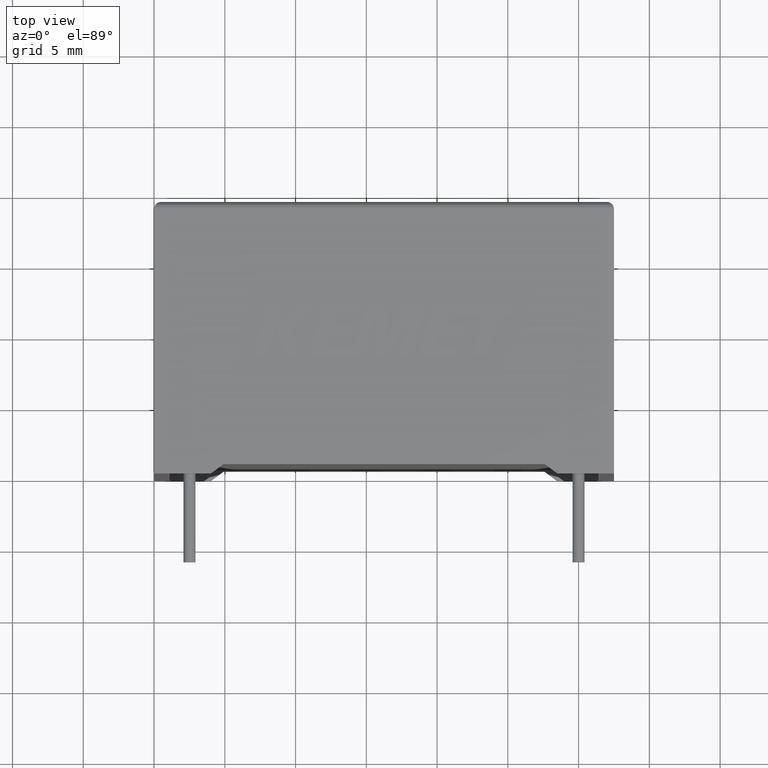
[diagram: clean part render]
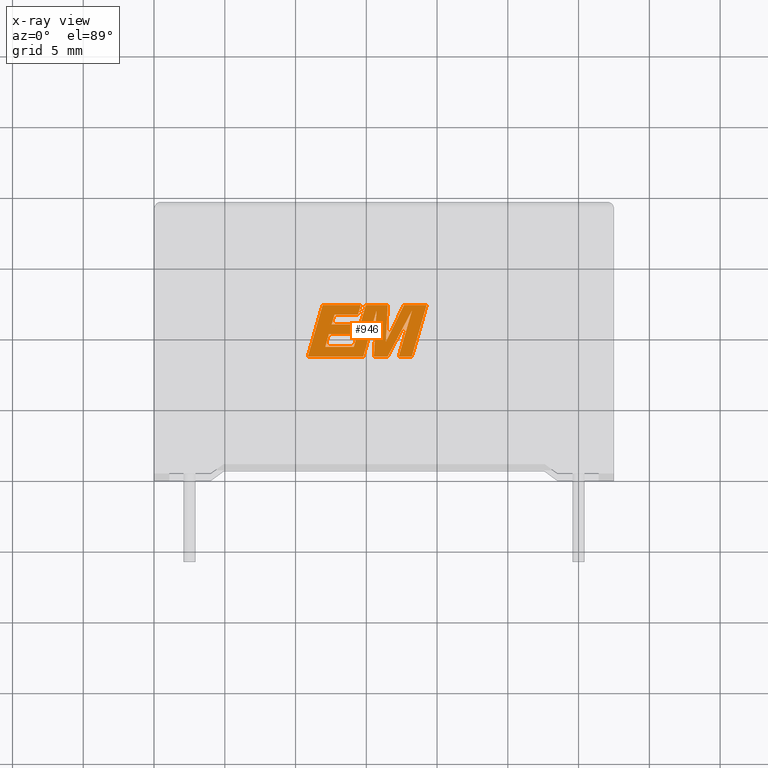
[diagram: x-ray — body ghosted, one internal face saturated and labeled with its STEP entity id]
A machine part, top view, then the same camera in x-ray: the body is ghosted and one INTERNAL B-rep face — a face not visible from any outside direction — is saturated and labeled: STEP entity #946.
In plain terms, the highlighted planar face has unit normal (0, 0, -1).
Its self-contained STEP definition (entity closure, byte-faithful):
#16 = VECTOR ( 'NONE', #124, 1000.000000000000100 ) ;
#24 = ORIENTED_EDGE ( 'NONE', *, *, #1815, .F. ) ;
#38 = LINE ( 'NONE', #177, #1385 ) ;
#44 = CARTESIAN_POINT ( 'NONE',  ( 12.74853395635959400, 11.20912647714856700, 31.30000000000000100 ) ) ;
#60 = DIRECTION ( 'NONE',  ( -1.000000000000000000, 0.0000000000000000000, 0.0000000000000000000 ) ) ;
#81 = CARTESIAN_POINT ( 'NONE',  ( 19.26368588534720400, 11.90203392768284000, 31.30000000000000100 ) ) ;
#100 = VERTEX_POINT ( 'NONE', #1088 ) ;
#103 = VERTEX_POINT ( 'NONE', #2242 ) ;
#124 = DIRECTION ( 'NONE',  ( -0.2765379750249963300, -0.9610029908221277000, 0.0000000000000000000 ) ) ;
#143 = ORIENTED_EDGE ( 'NONE', *, *, #830, .F. ) ;
#150 = CARTESIAN_POINT ( 'NONE',  ( 15.53761898871701800, 8.261759999999885200, 31.30000000000000100 ) ) ;
#169 = DIRECTION ( 'NONE',  ( 0.0000000000000000000, 0.0000000000000000000, -1.000000000000000000 ) ) ;
#177 = CARTESIAN_POINT ( 'NONE',  ( 13.92174256822604400, 9.859074327039259300, 31.30000000000000100 ) ) ;
#192 = LINE ( 'NONE', #2840, #1751 ) ;
#196 = ORIENTED_EDGE ( 'NONE', *, *, #920, .F. ) ;
#217 = CARTESIAN_POINT ( 'NONE',  ( 12.74853395635959400, 11.20912647714856700, 31.30000000000000100 ) ) ;
#220 = DIRECTION ( 'NONE',  ( -0.2760118818968580500, -0.9611542233438683500, 0.0000000000000000000 ) ) ;
#236 = CARTESIAN_POINT ( 'NONE',  ( 16.51723953100936600, 11.90203392768284000, 31.30000000000000100 ) ) ;
#259 = LINE ( 'NONE', #679, #341 ) ;
#317 = CARTESIAN_POINT ( 'NONE',  ( 16.50808346277604600, 8.261759999999885200, 31.30000000000000100 ) ) ;
#318 = VECTOR ( 'NONE', #2994, 1000.000000000000000 ) ;
#341 = VECTOR ( 'NONE', #220, 1000.000000000000100 ) ;
#392 = DIRECTION ( 'NONE',  ( -1.000000000000000000, 0.0000000000000000000, 0.0000000000000000000 ) ) ;
#402 = CARTESIAN_POINT ( 'NONE',  ( 16.50808346277604600, 8.261759999999885200, 31.30000000000000100 ) ) ;
#410 = LINE ( 'NONE', #2142, #885 ) ;
#416 = ORIENTED_EDGE ( 'NONE', *, *, #2874, .F. ) ;
#431 = EDGE_CURVE ( 'NONE', #2202, #2073, #505, .T. ) ;
#435 = CARTESIAN_POINT ( 'NONE',  ( 15.53761898871701800, 8.261759999999885200, 31.30000000000000100 ) ) ;
#453 = ORIENTED_EDGE ( 'NONE', *, *, #1978, .F. ) ;
#455 = ORIENTED_EDGE ( 'NONE', *, *, #1704, .F. ) ;
#461 = LINE ( 'NONE', #2967, #1353 ) ;
#505 = LINE ( 'NONE', #647, #318 ) ;
#518 = VERTEX_POINT ( 'NONE', #44 ) ;
#521 = DIRECTION ( 'NONE',  ( 0.2732148821746286900, 0.9619530280415482500, 0.0000000000000000000 ) ) ;
#533 = VECTOR ( 'NONE', #667, 1000.000000000000000 ) ;
#540 = FACE_OUTER_BOUND ( 'NONE', #557, .T. ) ;
#554 = ORIENTED_EDGE ( 'NONE', *, *, #431, .F. ) ;
#557 = EDGE_LOOP ( 'NONE', ( #196, #1159, #2027, #2402, #2363, #453, #1808, #24, #554, #2504, #2407, #416, #726, #625, #2316, #455, #2736, #2136, #3013, #1052, #585, #143, #2245 ) ) ;
#569 = VERTEX_POINT ( 'NONE', #81 ) ;
#585 = ORIENTED_EDGE ( 'NONE', *, *, #1324, .F. ) ;
#613 = CARTESIAN_POINT ( 'NONE',  ( 18.21708028970564500, 8.261759999999885200, 31.30000000000000100 ) ) ;
#615 = LINE ( 'NONE', #1071, #2385 ) ;
#625 = ORIENTED_EDGE ( 'NONE', *, *, #761, .F. ) ;
#629 = CARTESIAN_POINT ( 'NONE',  ( 14.60388023954813400, 11.90203392768284000, 31.30000000000000100 ) ) ;
#647 = CARTESIAN_POINT ( 'NONE',  ( 14.14077972987733700, 8.261759999999885200, 31.30000000000000100 ) ) ;
#653 = EDGE_CURVE ( 'NONE', #2848, #2202, #3009, .T. ) ;
#663 = CARTESIAN_POINT ( 'NONE',  ( 12.55151230143713000, 10.53203610217055800, 31.30000000000000100 ) ) ;
#666 = EDGE_CURVE ( 'NONE', #1105, #1602, #615, .T. ) ;
#667 = DIRECTION ( 'NONE',  ( 1.000000000000000000, 0.0000000000000000000, 0.0000000000000000000 ) ) ;
#669 = LINE ( 'NONE', #2844, #1848 ) ;
#679 = CARTESIAN_POINT ( 'NONE',  ( 18.22717488236188300, 11.51820696545625600, 31.30000000000000100 ) ) ;
#726 = ORIENTED_EDGE ( 'NONE', *, *, #1024, .F. ) ;
#761 = EDGE_CURVE ( 'NONE', #1602, #518, #3046, .T. ) ;
#830 = EDGE_CURVE ( 'NONE', #2794, #103, #1321, .T. ) ;
#836 = LINE ( 'NONE', #1600, #2960 ) ;
#839 = DIRECTION ( 'NONE',  ( 1.000000000000000000, 0.0000000000000000000, 0.0000000000000000000 ) ) ;
#856 = VECTOR ( 'NONE', #2261, 1000.000000000000100 ) ;
#862 = DIRECTION ( 'NONE',  ( -1.000000000000000000, 0.0000000000000000000, 0.0000000000000000000 ) ) ;
#880 = VERTEX_POINT ( 'NONE', #2306 ) ;
#885 = VECTOR ( 'NONE', #521, 1000.000000000000100 ) ;
#900 = DIRECTION ( 'NONE',  ( -0.05596501978069369500, -0.9984327301130239100, 0.0000000000000000000 ) ) ;
#912 = CARTESIAN_POINT ( 'NONE',  ( 17.66708649917551800, 11.90203392768284000, 31.30000000000000100 ) ) ;
#920 = EDGE_CURVE ( 'NONE', #569, #2574, #836, .T. ) ;
#928 = VECTOR ( 'NONE', #1216, 1000.000000000000200 ) ;
#929 = DIRECTION ( 'NONE',  ( 0.2746459304916892800, 0.9615454294334481200, 0.0000000000000000000 ) ) ;
#942 = DIRECTION ( 'NONE',  ( 0.05375259206908576700, 0.9985542843760946100, 0.0000000000000000000 ) ) ;
#946 = ADVANCED_FACE ( 'NONE', ( #540 ), #2272, .T. ) ;
#958 = LINE ( 'NONE', #629, #1520 ) ;
#994 = CARTESIAN_POINT ( 'NONE',  ( 14.11969398825102900, 8.954324322939751100, 31.30000000000000100 ) ) ;
#1024 = EDGE_CURVE ( 'NONE', #518, #2465, #2710, .T. ) ;
#1052 = ORIENTED_EDGE ( 'NONE', *, *, #2791, .F. ) ;
#1071 = CARTESIAN_POINT ( 'NONE',  ( 14.11396043673089000, 10.53203610217055800, 31.30000000000000100 ) ) ;
#1088 = CARTESIAN_POINT ( 'NONE',  ( 17.29203041396853300, 8.261759999999885200, 31.30000000000000100 ) ) ;
#1105 = VERTEX_POINT ( 'NONE', #2562 ) ;
#1159 = ORIENTED_EDGE ( 'NONE', *, *, #2442, .F. ) ;
#1175 = VECTOR ( 'NONE', #1619, 999.9999999999998900 ) ;
#1188 = LINE ( 'NONE', #402, #1745 ) ;
#1196 = VECTOR ( 'NONE', #1801, 1000.000000000000000 ) ;
#1216 = DIRECTION ( 'NONE',  ( 0.2740217765954066600, 0.9617234872620595800, 0.0000000000000000000 ) ) ;
#1274 = LINE ( 'NONE', #150, #1196 ) ;
#1280 = CARTESIAN_POINT ( 'NONE',  ( 12.10172735933368300, 8.954324322939751100, 31.30000000000000100 ) ) ;
#1299 = DIRECTION ( 'NONE',  ( -1.000000000000000000, 0.0000000000000000000, 0.0000000000000000000 ) ) ;
#1321 = LINE ( 'NONE', #2333, #1468 ) ;
#1324 = EDGE_CURVE ( 'NONE', #103, #2243, #1462, .T. ) ;
#1338 = CARTESIAN_POINT ( 'NONE',  ( 12.35951580557810200, 9.859074327039259300, 31.30000000000000100 ) ) ;
#1341 = VERTEX_POINT ( 'NONE', #1280 ) ;
#1353 = VECTOR ( 'NONE', #900, 1000.000000000000100 ) ;
#1385 = VECTOR ( 'NONE', #929, 1000.000000000000100 ) ;
#1426 = CARTESIAN_POINT ( 'NONE',  ( 18.22717488236188300, 11.51820696545625600, 31.30000000000000100 ) ) ;
#1428 = EDGE_CURVE ( 'NONE', #100, #2325, #2416, .T. ) ;
#1435 = DIRECTION ( 'NONE',  ( -0.2762517575166416100, -0.9610853065513833600, 0.0000000000000000000 ) ) ;
#1462 = LINE ( 'NONE', #236, #2632 ) ;
#1468 = VECTOR ( 'NONE', #942, 1000.000000000000100 ) ;
#1477 = CARTESIAN_POINT ( 'NONE',  ( 11.91456785581369500, 11.90203392768284000, 31.30000000000000100 ) ) ;
#1520 = VECTOR ( 'NONE', #392, 1000.000000000000000 ) ;
#1555 = EDGE_CURVE ( 'NONE', #2946, #1648, #461, .T. ) ;
#1599 = LINE ( 'NONE', #613, #856 ) ;
#1600 = CARTESIAN_POINT ( 'NONE',  ( 19.26368588534720400, 11.90203392768284000, 31.30000000000000100 ) ) ;
#1602 = VERTEX_POINT ( 'NONE', #2519 ) ;
#1619 = DIRECTION ( 'NONE',  ( 0.2793947940878295200, 0.9601763114327595000, 0.0000000000000000000 ) ) ;
#1628 = VERTEX_POINT ( 'NONE', #1338 ) ;
#1642 = LINE ( 'NONE', #1934, #928 ) ;
#1648 = VERTEX_POINT ( 'NONE', #435 ) ;
#1661 = EDGE_CURVE ( 'NONE', #2574, #2794, #2375, .T. ) ;
#1704 = EDGE_CURVE ( 'NONE', #2807, #1105, #38, .T. ) ;
#1745 = VECTOR ( 'NONE', #2257, 1000.000000000000100 ) ;
#1751 = VECTOR ( 'NONE', #2629, 1000.000000000000000 ) ;
#1774 = EDGE_CURVE ( 'NONE', #1628, #2807, #2948, .T. ) ;
#1801 = DIRECTION ( 'NONE',  ( 1.000000000000000000, 0.0000000000000000000, 0.0000000000000000000 ) ) ;
#1808 = ORIENTED_EDGE ( 'NONE', *, *, #1555, .F. ) ;
#1815 = EDGE_CURVE ( 'NONE', #2073, #2946, #2739, .T. ) ;
#1848 = VECTOR ( 'NONE', #1435, 1000.000000000000100 ) ;
#1858 = VECTOR ( 'NONE', #2834, 1000.000000000000000 ) ;
#1934 = CARTESIAN_POINT ( 'NONE',  ( 12.10172735933368300, 8.954324322939751100, 31.30000000000000100 ) ) ;
#1978 = EDGE_CURVE ( 'NONE', #1648, #2293, #1274, .T. ) ;
#2027 = ORIENTED_EDGE ( 'NONE', *, *, #1428, .F. ) ;
#2044 = VECTOR ( 'NONE', #2103, 1000.000000000000200 ) ;
#2073 = VERTEX_POINT ( 'NONE', #2307 ) ;
#2103 = DIRECTION ( 'NONE',  ( 0.2759782365590697200, 0.9611638845408966300, 0.0000000000000000000 ) ) ;
#2106 = EDGE_CURVE ( 'NONE', #2804, #100, #259, .T. ) ;
#2136 = ORIENTED_EDGE ( 'NONE', *, *, #2206, .F. ) ;
#2142 = CARTESIAN_POINT ( 'NONE',  ( 14.40707995727128900, 11.20912647714856700, 31.30000000000000100 ) ) ;
#2151 = CARTESIAN_POINT ( 'NONE',  ( 10.86704356076801900, 8.261759999999883400, 31.30000000000000100 ) ) ;
#2163 = VERTEX_POINT ( 'NONE', #994 ) ;
#2174 = CARTESIAN_POINT ( 'NONE',  ( 15.71927738200547600, 11.50260019392240100, 31.30000000000000100 ) ) ;
#2185 = EDGE_CURVE ( 'NONE', #2163, #1341, #192, .T. ) ;
#2202 = VERTEX_POINT ( 'NONE', #2151 ) ;
#2206 = EDGE_CURVE ( 'NONE', #1341, #1628, #1642, .T. ) ;
#2242 = CARTESIAN_POINT ( 'NONE',  ( 16.51723953100936600, 11.90203392768284000, 31.30000000000000100 ) ) ;
#2243 = VERTEX_POINT ( 'NONE', #2678 ) ;
#2245 = ORIENTED_EDGE ( 'NONE', *, *, #1661, .F. ) ;
#2257 = DIRECTION ( 'NONE',  ( 0.4668459304955081000, 0.8843386665637680300, 0.0000000000000000000 ) ) ;
#2261 = DIRECTION ( 'NONE',  ( 0.2763139702539113000, 0.9610674221107073900, 0.0000000000000000000 ) ) ;
#2270 = CARTESIAN_POINT ( 'NONE',  ( 14.40707995727128900, 11.20912647714856700, 31.30000000000000100 ) ) ;
#2272 = PLANE ( 'NONE',  #2452 ) ;
#2293 = VERTEX_POINT ( 'NONE', #317 ) ;
#2306 = CARTESIAN_POINT ( 'NONE',  ( 14.60388023954813400, 11.90203392768284000, 31.30000000000000100 ) ) ;
#2307 = CARTESIAN_POINT ( 'NONE',  ( 14.78873746464715400, 8.261759999999885200, 31.30000000000000100 ) ) ;
#2316 = ORIENTED_EDGE ( 'NONE', *, *, #666, .F. ) ;
#2325 = VERTEX_POINT ( 'NONE', #2657 ) ;
#2333 = CARTESIAN_POINT ( 'NONE',  ( 16.37724500511726300, 9.301375461964747500, 31.30000000000000100 ) ) ;
#2354 = CARTESIAN_POINT ( 'NONE',  ( 16.37724500511726300, 9.301375461964747500, 31.30000000000000100 ) ) ;
#2363 = ORIENTED_EDGE ( 'NONE', *, *, #2580, .F. ) ;
#2375 = LINE ( 'NONE', #912, #2743 ) ;
#2385 = VECTOR ( 'NONE', #1299, 1000.000000000000000 ) ;
#2402 = ORIENTED_EDGE ( 'NONE', *, *, #2106, .F. ) ;
#2407 = ORIENTED_EDGE ( 'NONE', *, *, #2601, .F. ) ;
#2416 = LINE ( 'NONE', #2698, #2670 ) ;
#2442 = EDGE_CURVE ( 'NONE', #2325, #569, #1599, .T. ) ;
#2452 = AXIS2_PLACEMENT_3D ( 'NONE', #2985, #169, #2511 ) ;
#2465 = VERTEX_POINT ( 'NONE', #2270 ) ;
#2504 = ORIENTED_EDGE ( 'NONE', *, *, #653, .F. ) ;
#2511 = DIRECTION ( 'NONE',  ( -1.000000000000000000, 0.0000000000000000000, 0.0000000000000000000 ) ) ;
#2519 = CARTESIAN_POINT ( 'NONE',  ( 12.55151230143713000, 10.53203610217055800, 31.30000000000000100 ) ) ;
#2530 = CARTESIAN_POINT ( 'NONE',  ( 12.35951580557810200, 9.859074327039259300, 31.30000000000000100 ) ) ;
#2539 = DIRECTION ( 'NONE',  ( -0.4443210308329518200, -0.8958676361826801700, 0.0000000000000000000 ) ) ;
#2562 = CARTESIAN_POINT ( 'NONE',  ( 14.11396043673089000, 10.53203610217055800, 31.30000000000000100 ) ) ;
#2574 = VERTEX_POINT ( 'NONE', #2751 ) ;
#2580 = EDGE_CURVE ( 'NONE', #2293, #2804, #1188, .T. ) ;
#2601 = EDGE_CURVE ( 'NONE', #880, #2848, #958, .T. ) ;
#2629 = DIRECTION ( 'NONE',  ( -1.000000000000000000, 0.0000000000000000000, 0.0000000000000000000 ) ) ;
#2632 = VECTOR ( 'NONE', #60, 1000.000000000000000 ) ;
#2657 = CARTESIAN_POINT ( 'NONE',  ( 18.21708028970564500, 8.261759999999885200, 31.30000000000000100 ) ) ;
#2670 = VECTOR ( 'NONE', #839, 1000.000000000000000 ) ;
#2678 = CARTESIAN_POINT ( 'NONE',  ( 14.96697565347689200, 11.90203392768284000, 31.30000000000000100 ) ) ;
#2698 = CARTESIAN_POINT ( 'NONE',  ( 17.29203041396853300, 8.261759999999885200, 31.30000000000000100 ) ) ;
#2709 = CARTESIAN_POINT ( 'NONE',  ( 11.91456785581369500, 11.90203392768284000, 31.30000000000000100 ) ) ;
#2710 = LINE ( 'NONE', #217, #533 ) ;
#2736 = ORIENTED_EDGE ( 'NONE', *, *, #1774, .F. ) ;
#2739 = LINE ( 'NONE', #2849, #2044 ) ;
#2743 = VECTOR ( 'NONE', #2539, 1000.000000000000200 ) ;
#2751 = CARTESIAN_POINT ( 'NONE',  ( 17.66708649917551800, 11.90203392768284000, 31.30000000000000100 ) ) ;
#2791 = EDGE_CURVE ( 'NONE', #2243, #2163, #669, .T. ) ;
#2794 = VERTEX_POINT ( 'NONE', #2354 ) ;
#2804 = VERTEX_POINT ( 'NONE', #1426 ) ;
#2807 = VERTEX_POINT ( 'NONE', #2988 ) ;
#2834 = DIRECTION ( 'NONE',  ( 1.000000000000000000, 0.0000000000000000000, 0.0000000000000000000 ) ) ;
#2840 = CARTESIAN_POINT ( 'NONE',  ( 14.11969398825102900, 8.954324322939751100, 31.30000000000000100 ) ) ;
#2844 = CARTESIAN_POINT ( 'NONE',  ( 14.96697565347689200, 11.90203392768284000, 31.30000000000000100 ) ) ;
#2848 = VERTEX_POINT ( 'NONE', #1477 ) ;
#2849 = CARTESIAN_POINT ( 'NONE',  ( 14.78873746464715400, 8.261759999999885200, 31.30000000000000100 ) ) ;
#2874 = EDGE_CURVE ( 'NONE', #2465, #880, #410, .T. ) ;
#2946 = VERTEX_POINT ( 'NONE', #2174 ) ;
#2948 = LINE ( 'NONE', #2530, #1858 ) ;
#2960 = VECTOR ( 'NONE', #862, 1000.000000000000000 ) ;
#2967 = CARTESIAN_POINT ( 'NONE',  ( 15.71927738200547600, 11.50260019392240100, 31.30000000000000100 ) ) ;
#2985 = CARTESIAN_POINT ( 'NONE',  ( -0.3951220392287577700, -3.520623297275326200, 31.30000000000000100 ) ) ;
#2988 = CARTESIAN_POINT ( 'NONE',  ( 13.92174256822604400, 9.859074327039259300, 31.30000000000000100 ) ) ;
#2994 = DIRECTION ( 'NONE',  ( 1.000000000000000000, 0.0000000000000000000, 0.0000000000000000000 ) ) ;
#3009 = LINE ( 'NONE', #2709, #16 ) ;
#3013 = ORIENTED_EDGE ( 'NONE', *, *, #2185, .F. ) ;
#3046 = LINE ( 'NONE', #663, #1175 ) ;